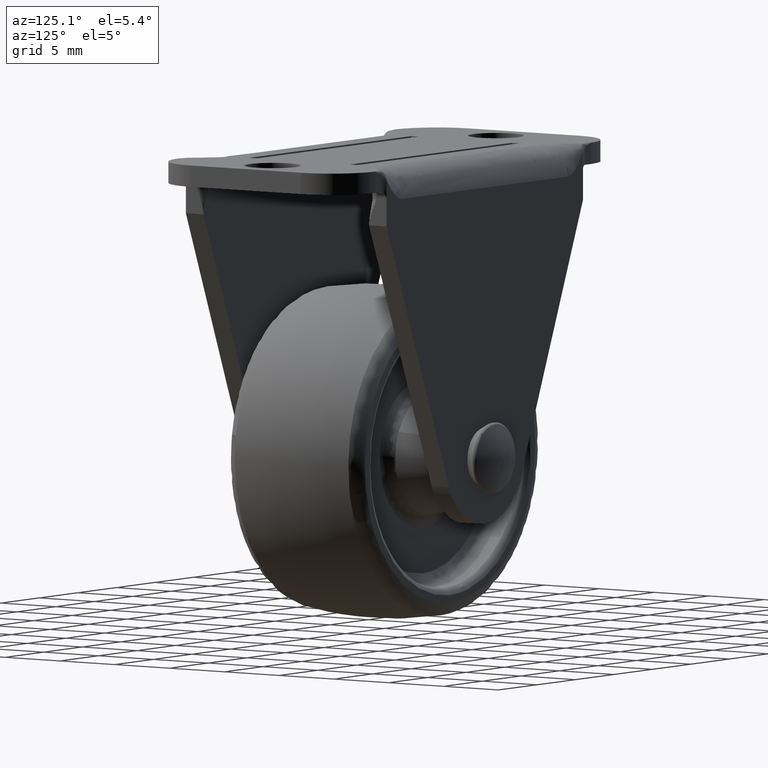
[diagram: clean part render]
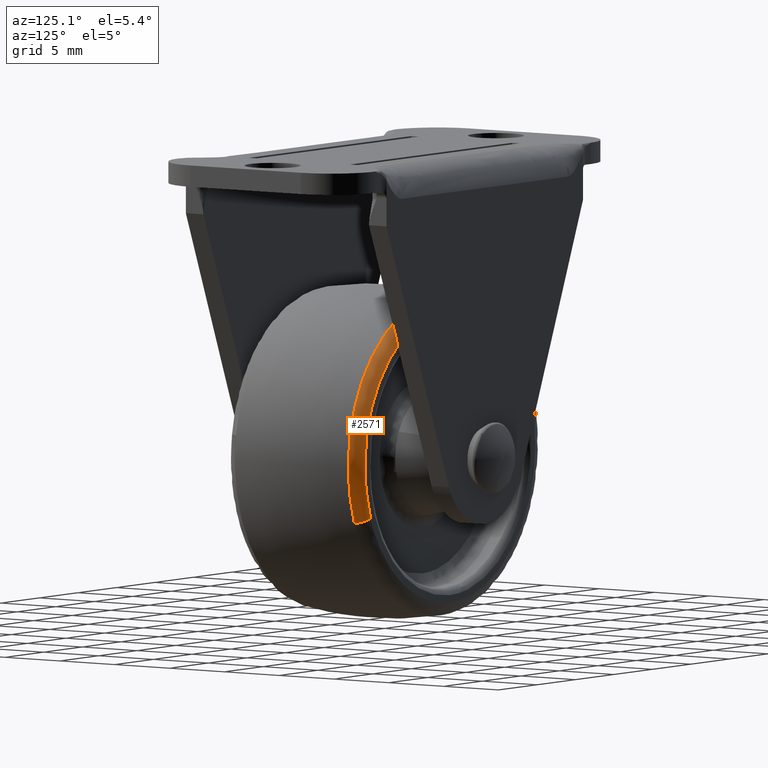
[diagram: same view with one face highlighted and labeled with its STEP entity id]
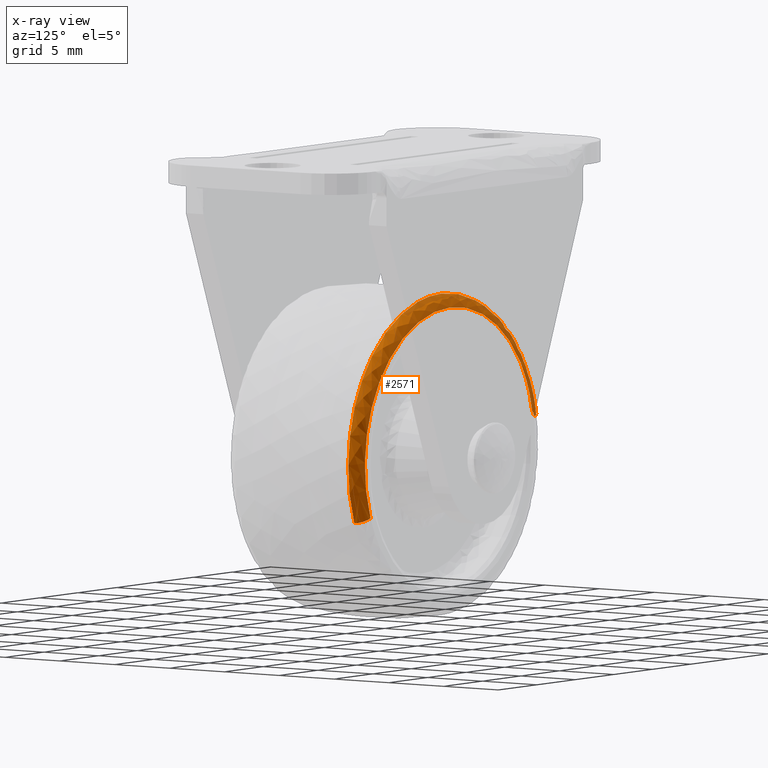
[diagram: x-ray of the same camera — body ghosted, the highlighted face saturated]
A machine part, auxiliary view. The second image highlights one B-rep face of the part: STEP entity #2571.
The next image is the same camera in x-ray: the body ghosted, the highlighted face saturated — about 10% of this face is hidden behind the body in this view.
In plain terms, the highlighted face is a freeform B-spline surface patch.
Its self-contained STEP definition (entity closure, byte-faithful):
#2446=CARTESIAN_POINT('',(10.281630905693632,5.997982618440175,-3.916254405346075));
#2447=CARTESIAN_POINT('',(10.626040822352847,5.997982618440177,-3.012049704416334));
#2448=CARTESIAN_POINT('',(10.807346583583728,5.997982618440177,-2.061611619730568));
#2449=CARTESIAN_POINT('',(12.868958203314293,5.997982618440177,8.745734963853160));
#2450=CARTESIAN_POINT('',(2.061611619730569,5.997982618440177,10.807346583583728));
#2451=CARTESIAN_POINT('',(-8.745734963853156,5.997982618440177,12.868958203314294));
#2452=CARTESIAN_POINT('',(-10.807346583583728,5.997982618440177,2.061611619730569));
#2453=CARTESIAN_POINT('',(11.172061351571266,6.058598365579144,-4.255417733451101));
#2454=CARTESIAN_POINT('',(11.546298547430485,6.058598365579145,-3.272905281309666));
#2455=CARTESIAN_POINT('',(11.743306114269231,6.058598365579143,-2.240155449072529));
#2456=CARTESIAN_POINT('',(13.983461563341759,6.058598365579145,9.503150665196699));
#2457=CARTESIAN_POINT('',(2.240155449072530,6.058598365579143,11.743306114269231));
#2458=CARTESIAN_POINT('',(-9.503150665196699,6.058598365579145,13.983461563341761));
#2459=CARTESIAN_POINT('',(-11.743306114269231,6.058598365579143,2.240155449072530));
#2460=CARTESIAN_POINT('',(11.269836901691317,5.109585538073256,-4.292660261645803));
#2461=CARTESIAN_POINT('',(11.647349343411539,5.109585538073256,-3.301549065504950));
#2462=CARTESIAN_POINT('',(11.846081079373535,5.109585538073255,-2.259760822198833));
#2463=CARTESIAN_POINT('',(14.105841901572362,5.109585538073257,9.586320257174698));
#2464=CARTESIAN_POINT('',(2.259760822198834,5.109585538073255,11.846081079373535));
#2465=CARTESIAN_POINT('',(-9.586320257174698,5.109585538073257,14.105841901572362));
#2466=CARTESIAN_POINT('',(-11.846081079373535,5.109585538073255,2.259760822198834));
#2474=(BOUNDED_SURFACE()B_SPLINE_SURFACE(2,2,((#2446,#2453,#2460),(#2447,#2454,#2461),(#2448,#2455,#2462),(#2449,#2456,#2463),(#2450,#2457,#2464),(#2451,#2458,#2465),(#2452,#2459,#2466)),.UNSPECIFIED.,.F.,.F.,.U.)B_SPLINE_SURFACE_WITH_KNOTS((3,2,2,3),(3,3),(0.0,2.397735820390179,22.378886712485421,42.360037604580668),(0.0,1.602895052379508),.UNSPECIFIED.)GEOMETRIC_REPRESENTATION_ITEM()RATIONAL_B_SPLINE_SURFACE(((0.856698198211991,0.619952019483860,0.857588716854272),(0.881091107867479,0.637604015990411,0.882006982394519),(0.913187031958681,0.660830320188401,0.914136269481936),(0.645720742789600,0.467277600618896,0.646391955079250),(0.913187031958681,0.660830320188401,0.914136269481936),(0.645720742789600,0.467277600618896,0.646391955079250),(0.913187031958681,0.660830320188401,0.914136269481936)))REPRESENTATION_ITEM('')SURFACE());
#2475=CARTESIAN_POINT('',(10.340959487457340,6.000000000000016,-3.938854596488066));
#2476=VERTEX_POINT('',#2475);
#2477=CARTESIAN_POINT('',(0.0,6.0,11.065713650934240));
#2478=VERTEX_POINT('',#2477);
#2479=CARTESIAN_POINT('',(10.340959487457344,6.000000000000016,-3.938854596488066));
#2480=CARTESIAN_POINT('',(11.065713650934239,6.0,-2.036105133750000));
#2481=CARTESIAN_POINT('',(11.065713650934240,6.0,-8.061993E-016));
#2482=CARTESIAN_POINT('',(11.065713650934240,6.0,11.065713650934240));
#2483=CARTESIAN_POINT('',(0.0,6.0,11.065713650934240));
#2491=(BOUNDED_CURVE()B_SPLINE_CURVE(2,(#2479,#2480,#2481,#2482,#2483),.UNSPECIFIED.,.F.,.U.)B_SPLINE_CURVE_WITH_KNOTS((3,2,3),(0.189552769334350,0.250000000000000,0.500000000000000),.UNSPECIFIED.)CURVE()GEOMETRIC_REPRESENTATION_ITEM()RATIONAL_B_SPLINE_CURVE((0.892609506587025,0.929181664167914,1.0,0.707106781186547,1.0))REPRESENTATION_ITEM(''));
#2492=EDGE_CURVE('',#2476,#2478,#2491,.T.);
#2493=ORIENTED_EDGE('',*,*,#2492,.T.);
#2494=CARTESIAN_POINT('',(-10.869709442348510,6.000000000000016,2.073507971405101));
#2495=VERTEX_POINT('',#2494);
#2496=CARTESIAN_POINT('',(0.0,6.0,11.065713650934240));
#2497=CARTESIAN_POINT('',(-9.154354465374743,6.0,11.065713650934242));
#2498=CARTESIAN_POINT('',(-10.869709442348510,6.000000000000016,2.073507971405100));
#2506=(BOUNDED_CURVE()B_SPLINE_CURVE(2,(#2496,#2497,#2498),.UNSPECIFIED.,.F.,.U.)B_SPLINE_CURVE_WITH_KNOTS((3,3),(0.500000000000000,0.717838633736778),.UNSPECIFIED.)CURVE()GEOMETRIC_REPRESENTATION_ITEM()RATIONAL_B_SPLINE_CURVE((1.0,0.744786165531642,0.934335795153774))REPRESENTATION_ITEM(''));
#2507=EDGE_CURVE('',#2478,#2495,#2506,.T.);
#2508=ORIENTED_EDGE('',*,*,#2507,.T.);
#2509=CARTESIAN_POINT('',(-11.837287781918180,5.172407707380526,2.258083410997876));
#2510=VERTEX_POINT('',#2509);
#2511=CARTESIAN_POINT('',(-10.869709442348505,6.000000000000017,2.073507971405101));
#2512=CARTESIAN_POINT('',(-11.695001249424662,6.000000288409980,2.230940803286638));
#2513=CARTESIAN_POINT('',(-11.837287781918183,5.172407707380526,2.258083410997875));
#2521=(BOUNDED_CURVE()B_SPLINE_CURVE(2,(#2511,#2512,#2513),.UNSPECIFIED.,.F.,.U.)B_SPLINE_CURVE_WITH_KNOTS((3,3),(-1.699374807877942,-0.297732268412829),.UNSPECIFIED.)CURVE()GEOMETRIC_REPRESENTATION_ITEM()RATIONAL_B_SPLINE_CURVE((0.891309091167586,0.682751535879277,0.892171777512070))REPRESENTATION_ITEM(''));
#2522=EDGE_CURVE('',#2495,#2510,#2521,.T.);
#2523=ORIENTED_EDGE('',*,*,#2522,.T.);
#2524=CARTESIAN_POINT('',(0.0,5.172406266732837,12.050739642381380));
#2525=VERTEX_POINT('',#2524);
#2526=CARTESIAN_POINT('',(0.0,5.172406266732837,12.050739642381380));
#2527=CARTESIAN_POINT('',(-9.969238220518427,5.172406951599392,12.050739090881828));
#2528=CARTESIAN_POINT('',(-11.837287781918182,5.172407707380526,2.258083410997876));
#2536=(BOUNDED_CURVE()B_SPLINE_CURVE(2,(#2526,#2527,#2528),.UNSPECIFIED.,.F.,.U.)B_SPLINE_CURVE_WITH_KNOTS((3,3),(0.500000000000000,0.717838633480265),.UNSPECIFIED.)CURVE()GEOMETRIC_REPRESENTATION_ITEM()RATIONAL_B_SPLINE_CURVE((1.0,0.744786165832165,0.934335794707371))REPRESENTATION_ITEM(''));
#2537=EDGE_CURVE('',#2525,#2510,#2536,.T.);
#2538=ORIENTED_EDGE('',*,*,#2537,.F.);
#2539=CARTESIAN_POINT('',(11.261469757784759,5.172411408221732,-4.289475456486795));
#2540=VERTEX_POINT('',#2539);
#2541=CARTESIAN_POINT('',(11.261469757784756,5.172411408221734,-4.289475456486795));
#2542=CARTESIAN_POINT('',(12.050738333794744,5.172410692620763,-2.217350575370395));
#2543=CARTESIAN_POINT('',(12.050738333794740,5.172410004809859,0.000000654293321));
#2544=CARTESIAN_POINT('',(12.050738333794744,5.172406266732837,12.050739642381387));
#2545=CARTESIAN_POINT('',(0.0,5.172406266732837,12.050739642381380));
#2553=(BOUNDED_CURVE()B_SPLINE_CURVE(2,(#2541,#2542,#2543,#2544,#2545),.UNSPECIFIED.,.F.,.U.)B_SPLINE_CURVE_WITH_KNOTS((3,2,3),(0.189552764179595,0.250000000000000,0.500000000000000),.UNSPECIFIED.)CURVE()GEOMETRIC_REPRESENTATION_ITEM()RATIONAL_B_SPLINE_CURVE((0.892609500349501,0.929181658128743,1.0,0.707106781186548,1.0))REPRESENTATION_ITEM(''));
#2554=EDGE_CURVE('',#2540,#2525,#2553,.T.);
#2555=ORIENTED_EDGE('',*,*,#2554,.F.);
#2556=CARTESIAN_POINT('',(10.340959487457344,6.000000000000016,-3.938854596488066));
#2557=CARTESIAN_POINT('',(11.126102480497369,6.000000289551665,-4.237914281427226));
#2558=CARTESIAN_POINT('',(11.261469757784758,5.172411408221732,-4.289475456486795));
#2566=(BOUNDED_CURVE()B_SPLINE_CURVE(2,(#2556,#2557,#2558),.UNSPECIFIED.,.F.,.U.)B_SPLINE_CURVE_WITH_KNOTS((3,3),(-1.699374809359117,-0.297736412820142),.UNSPECIFIED.)CURVE()GEOMETRIC_REPRESENTATION_ITEM()RATIONAL_B_SPLINE_CURVE((0.836173559894048,0.640517754290109,0.836981719044426))REPRESENTATION_ITEM(''));
#2567=EDGE_CURVE('',#2476,#2540,#2566,.T.);
#2568=ORIENTED_EDGE('',*,*,#2567,.F.);
#2569=EDGE_LOOP('',(#2493,#2508,#2523,#2538,#2555,#2568));
#2570=FACE_OUTER_BOUND('',#2569,.T.);
#2571=ADVANCED_FACE('',(#2570),#2474,.T.);